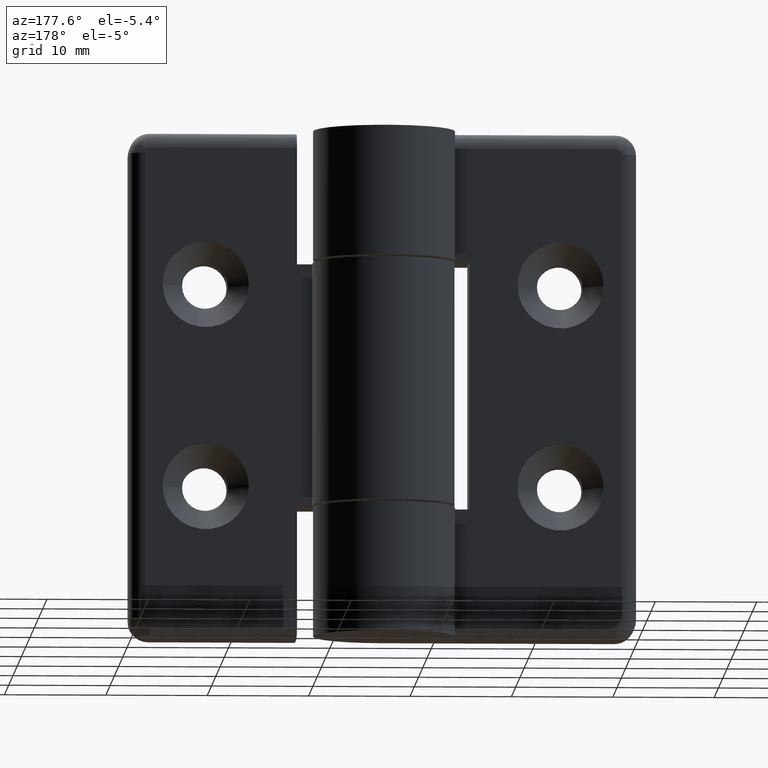
[diagram: clean part render]
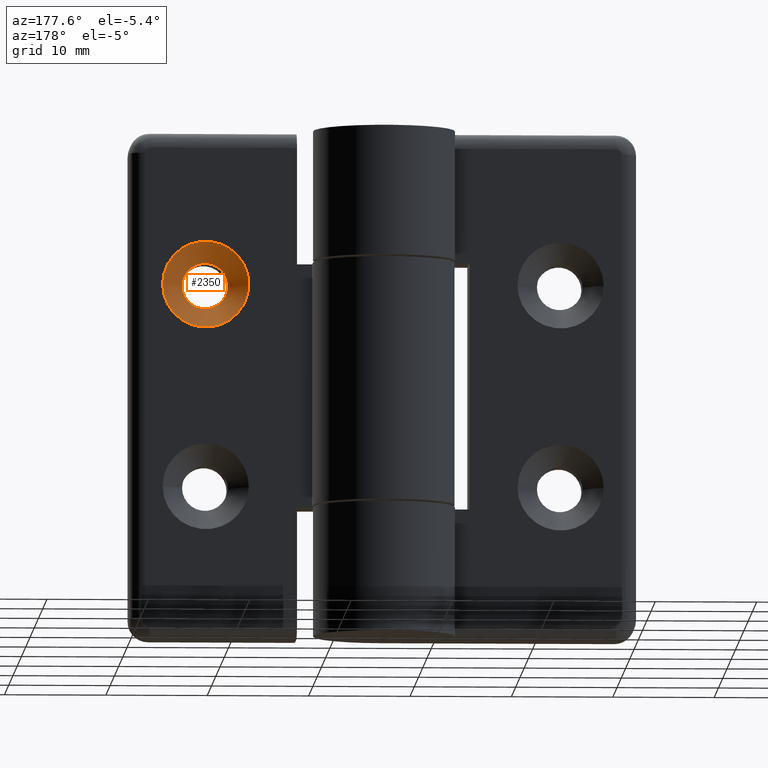
[diagram: same view with one face highlighted and labeled with its STEP entity id]
A machine part, auxiliary view. The second image highlights one B-rep face of the part: STEP entity #2350.
In plain terms, the highlighted conical surface has half-angle 45 deg.
Its self-contained STEP definition (entity closure, byte-faithful):
#56=FACE_BOUND('',#440,.T.);
#71=CONICAL_SURFACE('',#2639,3.25,0.785398163397448);
#274=FACE_OUTER_BOUND('',#439,.T.);
#439=EDGE_LOOP('',(#2037));
#440=EDGE_LOOP('',(#2038));
#939=CIRCLE('',#2640,4.25);
#940=CIRCLE('',#2641,2.25);
#1135=VERTEX_POINT('',#4311);
#1136=VERTEX_POINT('',#4313);
#1450=EDGE_CURVE('',#1135,#1135,#939,.T.);
#1451=EDGE_CURVE('',#1136,#1136,#940,.T.);
#2037=ORIENTED_EDGE('',*,*,#1450,.F.);
#2038=ORIENTED_EDGE('',*,*,#1451,.F.);
#2350=ADVANCED_FACE('',(#274,#56),#71,.F.);
#2639=AXIS2_PLACEMENT_3D('',#4310,#3333,#3334);
#2640=AXIS2_PLACEMENT_3D('',#4312,#3335,#3336);
#2641=AXIS2_PLACEMENT_3D('',#4314,#3337,#3338);
#3333=DIRECTION('center_axis',(0.,1.,0.));
#3334=DIRECTION('ref_axis',(1.,0.,0.));
#3335=DIRECTION('center_axis',(0.,-1.,0.));
#3336=DIRECTION('ref_axis',(1.,0.,0.));
#3337=DIRECTION('center_axis',(0.,1.,0.));
#3338=DIRECTION('ref_axis',(1.,0.,0.));
#4310=CARTESIAN_POINT('Origin',(-17.5,-3.,-10.));
#4311=CARTESIAN_POINT('',(-21.75,-2.,-10.));
#4312=CARTESIAN_POINT('Origin',(-17.5,-2.,-10.));
#4313=CARTESIAN_POINT('',(-19.75,-4.,-10.));
#4314=CARTESIAN_POINT('Origin',(-17.5,-4.,-10.));